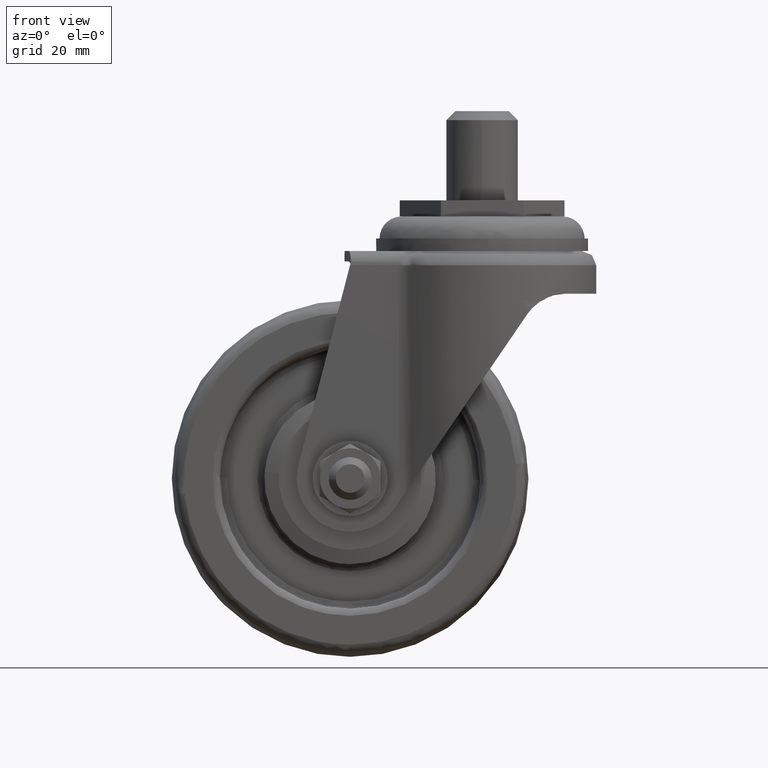
[diagram: clean part render]
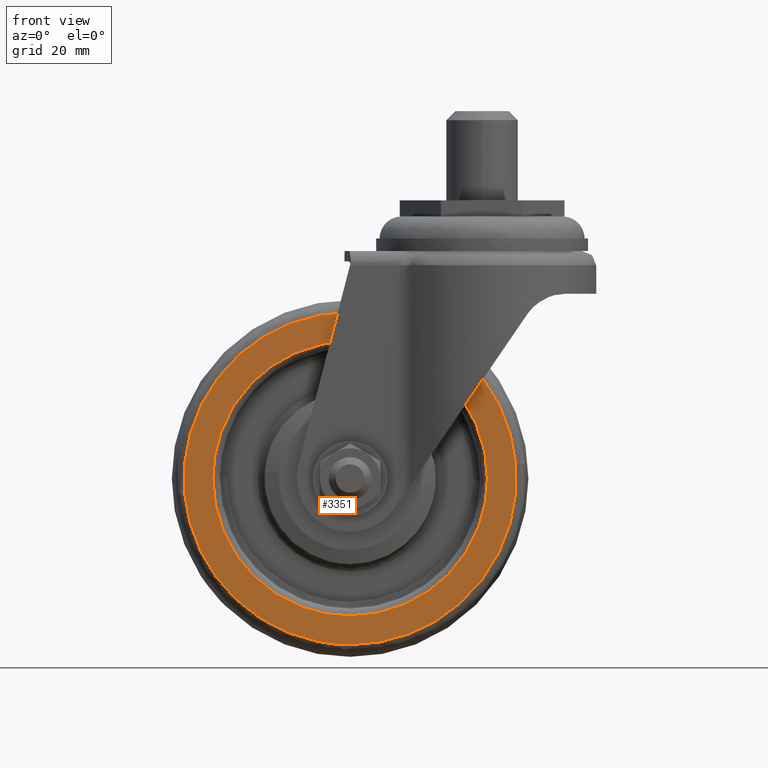
[diagram: same view with one face highlighted and labeled with its STEP entity id]
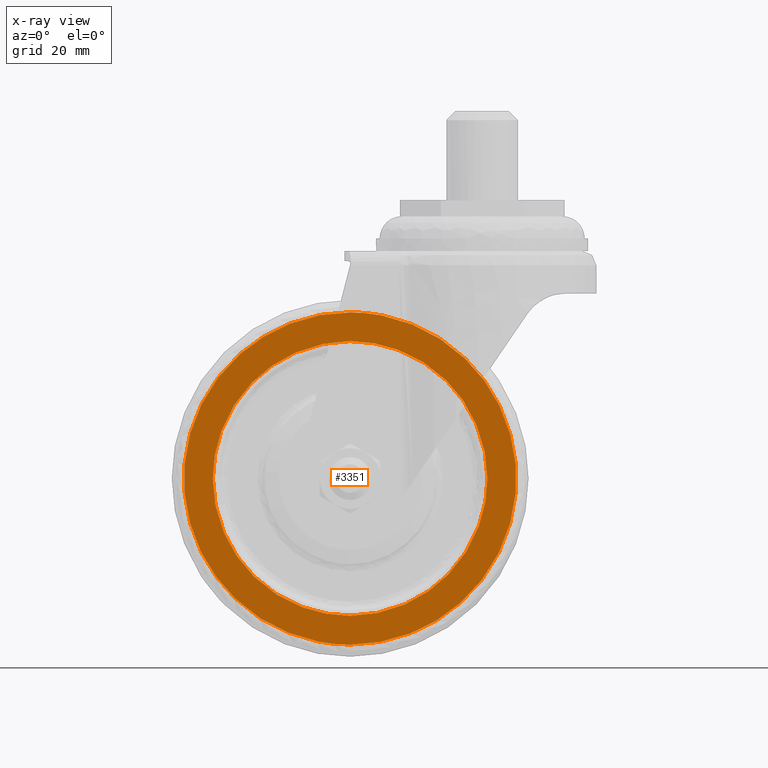
[diagram: x-ray of the same camera — body ghosted, the highlighted face saturated]
A machine part, front view. The second image highlights one B-rep face of the part: STEP entity #3351.
The next image is the same camera in x-ray: the body ghosted, the highlighted face saturated — about 0% of this face is hidden behind the body in this view.
In plain terms, the highlighted face is a freeform B-spline surface patch.
Its self-contained STEP definition (entity closure, byte-faithful):
#3065=CARTESIAN_POINT('',(9.394139176664208,-19.000000000000249,-69.408399634029863));
#3066=VERTEX_POINT('',#3065);
#3080=CARTESIAN_POINT('',(-37.0,-19.000000000000249,-120.074213284602000));
#3081=VERTEX_POINT('',#3080);
#3082=CARTESIAN_POINT('',(-37.0,-19.000000000000249,-120.074213284602000));
#3083=CARTESIAN_POINT('',(9.574213286653013,-19.000000000000252,-120.074213284421130));
#3084=CARTESIAN_POINT('',(9.574213288892873,-19.000000000000249,-73.499999999621579));
#3085=CARTESIAN_POINT('',(9.574213288991450,-19.000000000000249,-71.450237224799537));
#3086=CARTESIAN_POINT('',(9.394139176664208,-19.000000000000249,-69.408399634029863));
#3094=(BOUNDED_CURVE()B_SPLINE_CURVE(2,(#3082,#3083,#3084,#3085,#3086),.UNSPECIFIED.,.F.,.U.)B_SPLINE_CURVE_WITH_KNOTS((3,2,3),(0.0,0.250000000000000,0.265281545144374),.UNSPECIFIED.)CURVE()GEOMETRIC_REPRESENTATION_ITEM()RATIONAL_B_SPLINE_CURVE((1.0,0.707106781186547,1.0,0.982096556216884,0.966381850709060))REPRESENTATION_ITEM(''));
#3095=EDGE_CURVE('',#3081,#3066,#3094,.T.);
#3097=CARTESIAN_POINT('',(-83.394139176664197,-19.000000000000249,-77.591600365970137));
#3098=VERTEX_POINT('',#3097);
#3099=CARTESIAN_POINT('',(-83.394139176664197,-19.000000000000249,-77.591600365970137));
#3100=CARTESIAN_POINT('',(-79.647504844062865,-19.000000000000252,-120.074213284799540));
#3101=CARTESIAN_POINT('',(-37.0,-19.000000000000249,-120.074213284602000));
#3109=(BOUNDED_CURVE()B_SPLINE_CURVE(2,(#3099,#3100,#3101),.UNSPECIFIED.,.F.,.U.)B_SPLINE_CURVE_WITH_KNOTS((3,3),(0.765281545144374,1.0),.UNSPECIFIED.)CURVE()GEOMETRIC_REPRESENTATION_ITEM()RATIONAL_B_SPLINE_CURVE((0.966381850709060,0.725010224969663,1.0))REPRESENTATION_ITEM(''));
#3110=EDGE_CURVE('',#3098,#3081,#3109,.T.);
#3153=CARTESIAN_POINT('',(-37.0,-19.000000000000249,-26.925786715398001));
#3154=VERTEX_POINT('',#3153);
#3155=CARTESIAN_POINT('',(-37.0,-19.000000000000249,-26.925786715398001));
#3156=CARTESIAN_POINT('',(-83.574213286653020,-19.000000000000252,-26.925786715578891));
#3157=CARTESIAN_POINT('',(-83.574213288892878,-19.000000000000259,-73.500000000378421));
#3158=CARTESIAN_POINT('',(-83.574213288991444,-19.000000000000249,-75.549762775200463));
#3159=CARTESIAN_POINT('',(-83.394139176664197,-19.000000000000249,-77.591600365970137));
#3167=(BOUNDED_CURVE()B_SPLINE_CURVE(2,(#3155,#3156,#3157,#3158,#3159),.UNSPECIFIED.,.F.,.U.)B_SPLINE_CURVE_WITH_KNOTS((3,2,3),(0.500000000000000,0.750000000000000,0.765281545144374),.UNSPECIFIED.)CURVE()GEOMETRIC_REPRESENTATION_ITEM()RATIONAL_B_SPLINE_CURVE((1.0,0.707106781186547,1.0,0.982096556216884,0.966381850709060))REPRESENTATION_ITEM(''));
#3168=EDGE_CURVE('',#3154,#3098,#3167,.T.);
#3170=CARTESIAN_POINT('',(9.394139176664208,-19.000000000000249,-69.408399634029863));
#3171=CARTESIAN_POINT('',(5.647504844062881,-19.000000000000252,-26.925786715200459));
#3172=CARTESIAN_POINT('',(-37.0,-19.000000000000249,-26.925786715398001));
#3180=(BOUNDED_CURVE()B_SPLINE_CURVE(2,(#3170,#3171,#3172),.UNSPECIFIED.,.F.,.U.)B_SPLINE_CURVE_WITH_KNOTS((3,3),(0.265281545144374,0.500000000000000),.UNSPECIFIED.)CURVE()GEOMETRIC_REPRESENTATION_ITEM()RATIONAL_B_SPLINE_CURVE((0.966381850709060,0.725010224969663,1.0))REPRESENTATION_ITEM(''));
#3181=EDGE_CURVE('',#3066,#3154,#3180,.T.);
#3213=CARTESIAN_POINT('',(1.499999997863177,-19.000000000000249,-73.500000000000000));
#3214=VERTEX_POINT('',#3213);
#3228=CARTESIAN_POINT('',(-37.0,-19.000000000000249,-34.999999999999993));
#3229=VERTEX_POINT('',#3228);
#3230=CARTESIAN_POINT('',(1.499999997863177,-19.000000000000249,-73.500000000000000));
#3231=CARTESIAN_POINT('',(1.499999998931590,-19.000000000000252,-35.0));
#3232=CARTESIAN_POINT('',(-37.0,-19.000000000000249,-34.999999999999993));
#3240=(BOUNDED_CURVE()B_SPLINE_CURVE(2,(#3230,#3231,#3232),.UNSPECIFIED.,.F.,.U.)B_SPLINE_CURVE_WITH_KNOTS((3,3),(0.250000000000000,0.500000000000000),.UNSPECIFIED.)CURVE()GEOMETRIC_REPRESENTATION_ITEM()RATIONAL_B_SPLINE_CURVE((1.0,0.707106781186547,1.0))REPRESENTATION_ITEM(''));
#3241=EDGE_CURVE('',#3214,#3229,#3240,.T.);
#3243=CARTESIAN_POINT('',(-75.499999997863171,-19.000000000000249,-73.500000000000000));
#3244=VERTEX_POINT('',#3243);
#3245=CARTESIAN_POINT('',(-37.0,-19.000000000000249,-34.999999999999993));
#3246=CARTESIAN_POINT('',(-75.499999998931585,-19.000000000000252,-35.0));
#3247=CARTESIAN_POINT('',(-75.499999997863171,-19.000000000000249,-73.500000000000000));
#3255=(BOUNDED_CURVE()B_SPLINE_CURVE(2,(#3245,#3246,#3247),.UNSPECIFIED.,.F.,.U.)B_SPLINE_CURVE_WITH_KNOTS((3,3),(0.500000000000000,0.750000000000000),.UNSPECIFIED.)CURVE()GEOMETRIC_REPRESENTATION_ITEM()RATIONAL_B_SPLINE_CURVE((1.0,0.707106781186547,1.0))REPRESENTATION_ITEM(''));
#3256=EDGE_CURVE('',#3229,#3244,#3255,.T.);
#3302=CARTESIAN_POINT('',(-37.0,-19.000000000000249,-112.0));
#3303=VERTEX_POINT('',#3302);
#3304=CARTESIAN_POINT('',(-75.499999997863171,-19.000000000000249,-73.500000000000000));
#3305=CARTESIAN_POINT('',(-75.499999998931585,-19.000000000000252,-111.999999999999990));
#3306=CARTESIAN_POINT('',(-37.0,-19.000000000000249,-112.0));
#3314=(BOUNDED_CURVE()B_SPLINE_CURVE(2,(#3304,#3305,#3306),.UNSPECIFIED.,.F.,.U.)B_SPLINE_CURVE_WITH_KNOTS((3,3),(0.750000000000000,1.0),.UNSPECIFIED.)CURVE()GEOMETRIC_REPRESENTATION_ITEM()RATIONAL_B_SPLINE_CURVE((1.0,0.707106781186547,1.0))REPRESENTATION_ITEM(''));
#3315=EDGE_CURVE('',#3244,#3303,#3314,.T.);
#3317=CARTESIAN_POINT('',(-37.0,-19.000000000000249,-112.0));
#3318=CARTESIAN_POINT('',(1.499999998931590,-19.000000000000252,-111.999999999999990));
#3319=CARTESIAN_POINT('',(1.499999997863177,-19.000000000000249,-73.500000000000000));
#3327=(BOUNDED_CURVE()B_SPLINE_CURVE(2,(#3317,#3318,#3319),.UNSPECIFIED.,.F.,.U.)B_SPLINE_CURVE_WITH_KNOTS((3,3),(0.0,0.250000000000000),.UNSPECIFIED.)CURVE()GEOMETRIC_REPRESENTATION_ITEM()RATIONAL_B_SPLINE_CURVE((1.0,0.707106781186547,1.0))REPRESENTATION_ITEM(''));
#3328=EDGE_CURVE('',#3303,#3214,#3327,.T.);
#3334=CARTESIAN_POINT('',(-88.213875781523967,-19.000000000000249,-124.726977011193990));
#3335=CARTESIAN_POINT('',(-88.213875781523967,-19.000000000000249,-22.273020490370492));
#3336=CARTESIAN_POINT('',(14.213874948722660,-19.000000000000249,-124.726977011193990));
#3337=CARTESIAN_POINT('',(14.213874948722660,-19.000000000000249,-22.273020490370492));
#3338=B_SPLINE_SURFACE_WITH_KNOTS('',1,1,((#3334,#3336),(#3335,#3337)),.UNSPECIFIED.,.F.,.F.,.U.,(2,2),(2,2),(0.0,102.453956520823500),(0.0,102.427750730246600),.UNSPECIFIED.);
#3339=ORIENTED_EDGE('',*,*,#3095,.T.);
#3340=ORIENTED_EDGE('',*,*,#3181,.T.);
#3341=ORIENTED_EDGE('',*,*,#3168,.T.);
#3342=ORIENTED_EDGE('',*,*,#3110,.T.);
#3343=EDGE_LOOP('',(#3339,#3340,#3341,#3342));
#3344=FACE_OUTER_BOUND('',#3343,.T.);
#3345=ORIENTED_EDGE('',*,*,#3256,.F.);
#3346=ORIENTED_EDGE('',*,*,#3241,.F.);
#3347=ORIENTED_EDGE('',*,*,#3328,.F.);
#3348=ORIENTED_EDGE('',*,*,#3315,.F.);
#3349=EDGE_LOOP('',(#3345,#3346,#3347,#3348));
#3350=FACE_BOUND('',#3349,.T.);
#3351=ADVANCED_FACE('',(#3344,#3350),#3338,.F.);